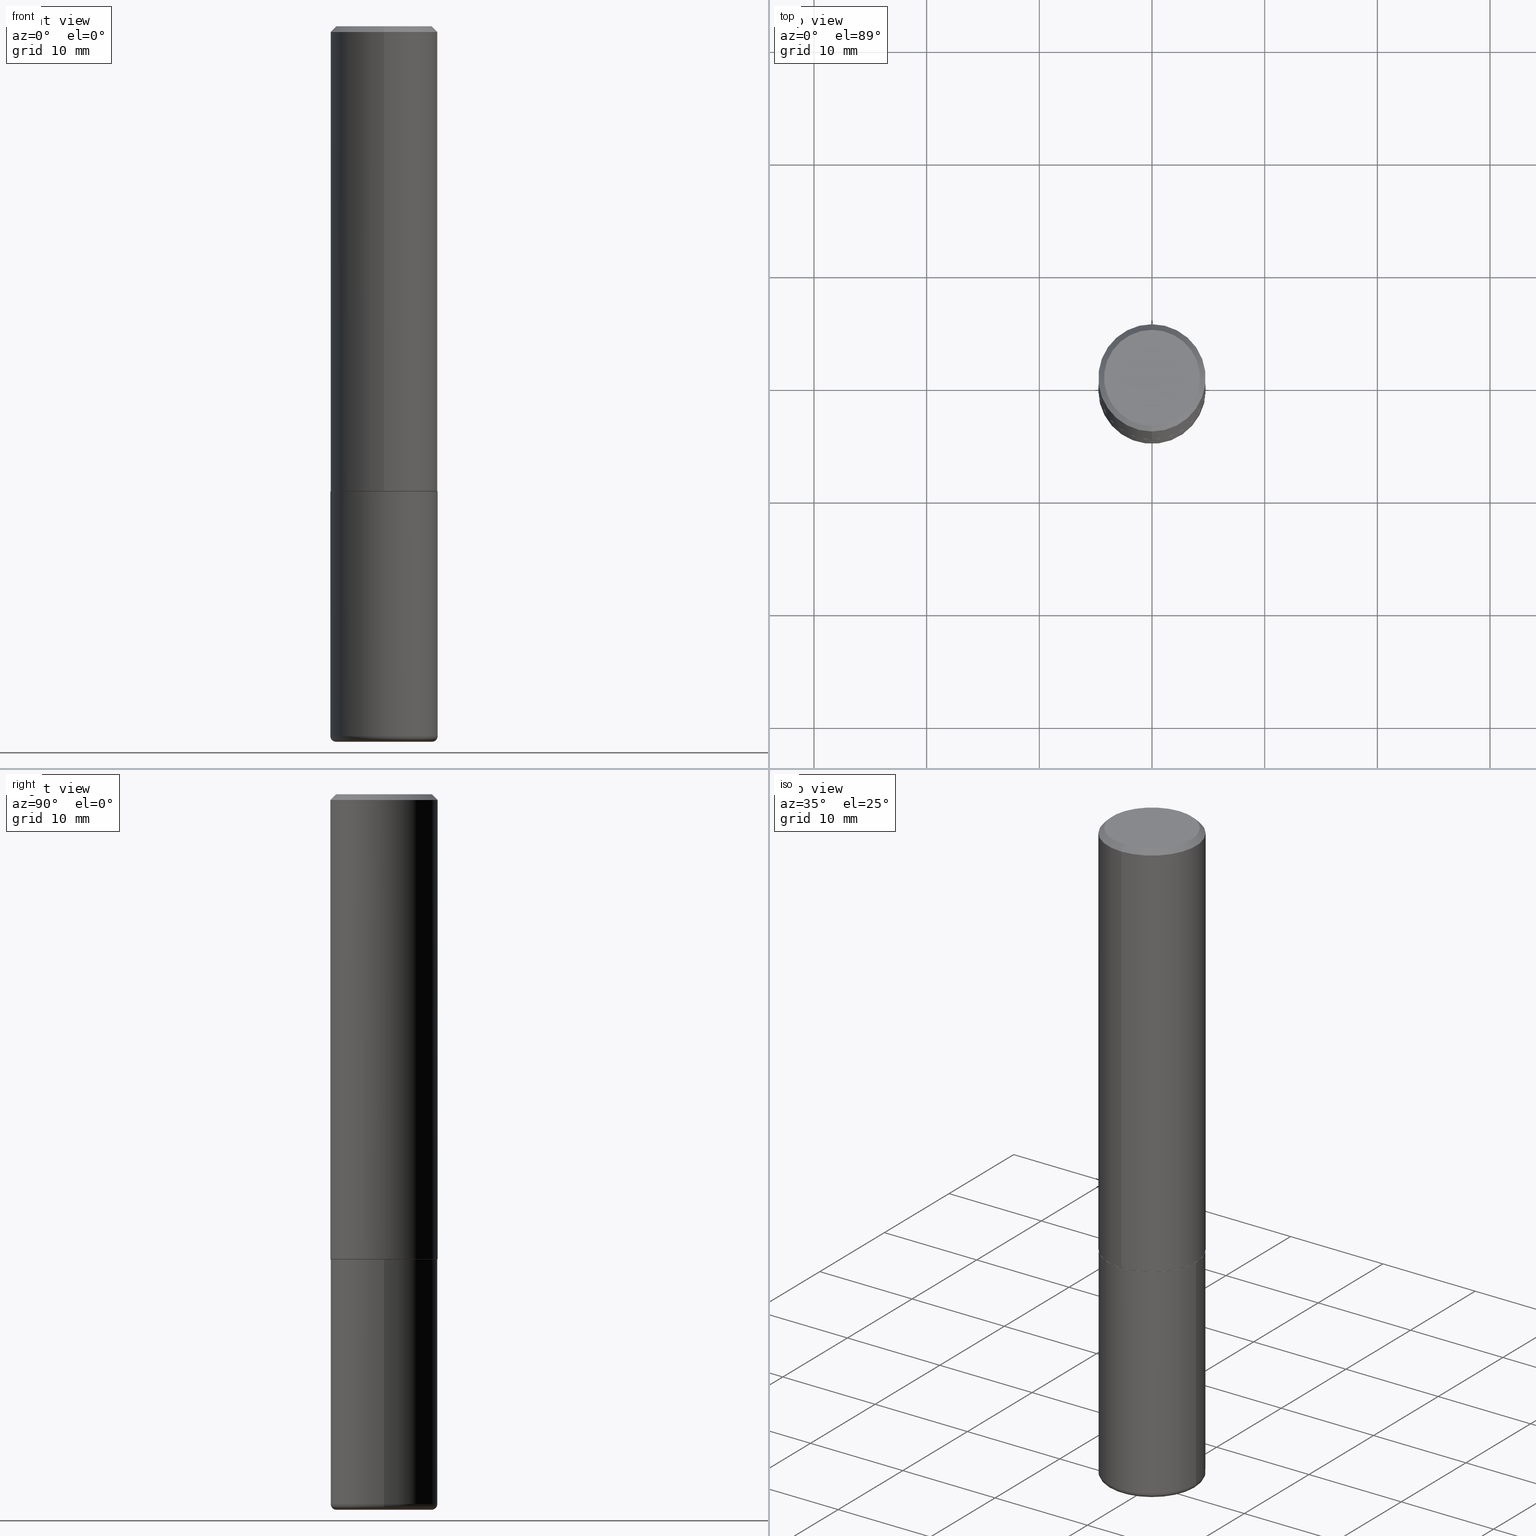
[diagram: canonical four-view strip — front | top / right | iso, engineering-drawing reading convention]
A machine part, canonical four-view strip (front | top / right | iso — engineering-drawing reading convention). The complete STEP part file that produces these views, byte-faithful:
ISO-10303-21;
HEADER;
FILE_DESCRIPTION (( 'STEP AP203' ),
    '1' );
FILE_NAME ('36864.STEP',
    '2024-03-01T18:25:11',
    ( '' ),
    ( '' ),
    'SwSTEP 2.0',
    'SolidWorks 2023',
    '' );
FILE_SCHEMA (( 'CONFIG_CONTROL_DESIGN' ));
ENDSEC;

DATA;
#1 = PERSON_AND_ORGANIZATION ( #294, #398 ) ;
#2 = AXIS2_PLACEMENT_3D ( 'NONE', #152, #216, #248 ) ;
#3 = CARTESIAN_POINT ( 'NONE',  ( 6.064762639339139522E-29, -8.658873720331001644E-15, -2.480000000000000426 ) ) ;
#4 = CIRCLE ( 'NONE', #397, 0.1674999999999999822 ) ;
#5 = AXIS2_PLACEMENT_3D ( 'NONE', #219, #247, #119 ) ;
#6 = CARTESIAN_POINT ( 'NONE',  ( 4.862456832815075803E-31, -7.023748775034694809E-17, -0.02000000000000008021 ) ) ;
#7 = PRODUCT_RELATED_PRODUCT_CATEGORY ( 'detail', '', ( #140 ) ) ;
#8 = ORIENTED_EDGE ( 'NONE', *, *, #199, .T. ) ;
#9 = PERSON_AND_ORGANIZATION ( #294, #398 ) ;
#10 = ORIENTED_EDGE ( 'NONE', *, *, #115, .T. ) ;
#11 = CONICAL_SURFACE ( 'NONE', #5, 0.1864999999999999991, 0.7853981633974824739 ) ;
#12 = COORDINATED_UNIVERSAL_TIME_OFFSET ( 5, 0, .BEHIND. ) ;
#13 = CC_DESIGN_DATE_AND_TIME_ASSIGNMENT ( #124, #198, ( #221 ) ) ;
#14 = ORIENTED_EDGE ( 'NONE', *, *, #174, .T. ) ;
#15 = CLOSED_SHELL ( 'NONE', ( #263, #268, #169, #69, #395, #57 ) ) ;
#16 = AXIS2_PLACEMENT_3D ( 'NONE', #96, #226, #32 ) ;
#17 = MANIFOLD_SOLID_BREP ( 'Body-Move/Copy2[1]', #15 ) ;
#18 = DIRECTION ( 'NONE',  ( 1.000000000000000000, -6.982962677686273021E-15, 0.000000000000000000 ) ) ;
#19 = DIRECTION ( 'NONE',  ( -2.445468806185136597E-29, 3.491481338843145583E-15, 1.000000000000000000 ) ) ;
#20 = FACE_OUTER_BOUND ( 'NONE', #67, .T. ) ;
#21 = DIRECTION ( 'NONE',  ( -2.445468806185136597E-29, 3.491481338843145583E-15, 1.000000000000000000 ) ) ;
#22 = ORIENTED_EDGE ( 'NONE', *, *, #318, .T. ) ;
#23 = AXIS2_PLACEMENT_3D ( 'NONE', #229, #131, #416 ) ;
#24 = CC_DESIGN_SECURITY_CLASSIFICATION ( #108, ( #179 ) ) ;
#25 = CARTESIAN_POINT ( 'NONE',  ( -1.302322539388449156E-15, -0.1865000000000057168, -1.624999999999999778 ) ) ;
#26 = PERSON_AND_ORGANIZATION ( #294, #398 ) ;
#27 = DIRECTION ( 'NONE',  ( -2.445468806185136877E-29, 3.491481338843145188E-15, 1.000000000000000000 ) ) ;
#28 = EDGE_CURVE ( 'NONE', #301, #278, #265, .T. ) ;
#29 = PERSON_AND_ORGANIZATION_ROLE ( 'classification_officer' ) ;
#30 = LINE ( 'NONE', #186, #113 ) ;
#31 = EDGE_CURVE ( 'NONE', #260, #278, #238, .T. ) ;
#32 = DIRECTION ( 'NONE',  ( 1.000000000000000000, -6.982962677686269077E-15, 4.883557194083112901E-29 ) ) ;
#33 = CIRCLE ( 'NONE', #195, 0.1874999999999999167 ) ;
#34 = CC_DESIGN_PERSON_AND_ORGANIZATION_ASSIGNMENT ( #409, #29, ( #108 ) ) ;
#35 = DIRECTION ( 'NONE',  ( 2.431228416407527584E-29, -3.511874387517332860E-15, -1.000000000000000000 ) ) ;
#36 = DIRECTION ( 'NONE',  ( -6.982962677686266711E-15, -1.000000000000000000, 3.491481338843145583E-15 ) ) ;
#37 = AXIS2_PLACEMENT_3D ( 'NONE', #148, #405, #242 ) ;
#38 = EDGE_CURVE ( 'NONE', #272, #187, #4, .T. ) ;
#39 = UNCERTAINTY_MEASURE_WITH_UNIT (LENGTH_MEASURE( 1.000000000000000082E-05 ), #126, 'distance_accuracy_value', 'NONE');
#40 = CYLINDRICAL_SURFACE ( 'NONE', #2, 0.1875000000000000555 ) ;
#41 = DIRECTION ( 'NONE',  ( 1.000000000000000000, -6.982962677686266711E-15, 4.876176775795935793E-29 ) ) ;
#42 = CARTESIAN_POINT ( 'NONE',  ( 3.948314948245825329E-29, -5.703284005328150284E-15, -1.624000000000000110 ) ) ;
#43 = CIRCLE ( 'NONE', #292, 0.1674999999999997879 ) ;
#44 = ORIENTED_EDGE ( 'NONE', *, *, #115, .F. ) ;
#45 = DIRECTION ( 'NONE',  ( -2.431228416407527584E-29, 3.511874387517332860E-15, 1.000000000000000000 ) ) ;
#46 = CARTESIAN_POINT ( 'NONE',  ( -1.286343374582161379E-15, -0.1875000000000000555, -0.01999999999999942449 ) ) ;
#47 = ORIENTED_EDGE ( 'NONE', *, *, #71, .F. ) ;
#48 = DIRECTION ( 'NONE',  ( -1.000000000000000000, 6.982962677686265922E-15, -4.876176775795935793E-29 ) ) ;
#49 = ORIENTED_EDGE ( 'NONE', *, *, #374, .F. ) ;
#50 = CIRCLE ( 'NONE', #275, 0.1874999999999999722 ) ;
#51 = ORIENTED_EDGE ( 'NONE', *, *, #127, .T. ) ;
#52 = DIRECTION ( 'NONE',  ( -1.000000000000000000, 6.982962677686265922E-15, -4.876176775795935793E-29 ) ) ;
#53 = EDGE_LOOP ( 'NONE', ( #379, #254 ) ) ;
#54 = CARTESIAN_POINT ( 'NONE',  ( -1.286343374582161379E-15, -0.1875000000000000555, -0.01999999999999942449 ) ) ;
#55 = APPROVAL_STATUS ( 'not_yet_approved' ) ;
#56 = DIRECTION ( 'NONE',  ( 1.000000000000000000, -6.982962677686269077E-15, 0.000000000000000000 ) ) ;
#57 = ADVANCED_FACE ( 'NONE', ( #77 ), #288, .T. ) ;
#58 = AXIS2_PLACEMENT_3D ( 'NONE', #204, #36, #270 ) ;
#59 = DIRECTION ( 'NONE',  ( 1.000000000000000000, -6.982962677686265922E-15, 0.000000000000000000 ) ) ;
#60 = DIRECTION ( 'NONE',  ( -2.431228416407527584E-29, 3.511874387517332860E-15, 1.000000000000000000 ) ) ;
#61 = CARTESIAN_POINT ( 'NONE',  ( 1.325162202192626283E-15, 0.1864999999999943092, -1.625000000000000888 ) ) ;
#62 = AXIS2_PLACEMENT_3D ( 'NONE', #252, #384, #90 ) ;
#63 = CARTESIAN_POINT ( 'NONE',  ( 0.1874999999999999722, -6.982962677686288010E-15, -1.625000000000000222 ) ) ;
#64 = CARTESIAN_POINT ( 'NONE',  ( 4.862456832815075803E-31, -7.023748775034694809E-17, -0.02000000000000008021 ) ) ;
#65 = ADVANCED_FACE ( 'NONE', ( #109 ), #40, .T. ) ;
#66 = CARTESIAN_POINT ( 'NONE',  ( 0.000000000000000000, 0.000000000000000000, 0.000000000000000000 ) ) ;
#67 = EDGE_LOOP ( 'NONE', ( #214, #10 ) ) ;
#68 = ADVANCED_BREP_SHAPE_REPRESENTATION ( '36864', ( #17, #293, #364 ), #350 ) ;
#69 = ADVANCED_FACE ( 'NONE', ( #146 ), #189, .T. ) ;
#70 = AXIS2_PLACEMENT_3D ( 'NONE', #343, #161, #291 ) ;
#71 = EDGE_CURVE ( 'NONE', #250, #260, #298, .T. ) ;
#72 = ORIENTED_EDGE ( 'NONE', *, *, #95, .T. ) ;
#73 = DIRECTION ( 'NONE',  ( 0.000000000000000000, 0.000000000000000000, 1.000000000000000000 ) ) ;
#74 = DIRECTION ( 'NONE',  ( -2.445468806185136597E-29, 3.491481338843145583E-15, 1.000000000000000000 ) ) ;
#75 = EDGE_LOOP ( 'NONE', ( #325, #206, #316, #145 ) ) ;
#76 = DIRECTION ( 'NONE',  ( 1.000000000000000000, -6.982962677686266711E-15, 4.876176775795935793E-29 ) ) ;
#77 = FACE_OUTER_BOUND ( 'NONE', #137, .T. ) ;
#78 = AXIS2_PLACEMENT_3D ( 'NONE', #258, #346, #314 ) ;
#79 = PLANE ( 'NONE',  #78 ) ;
#80 = APPROVAL_PERSON_ORGANIZATION ( #1, #332, #249 ) ;
#81 = ORIENTED_EDGE ( 'NONE', *, *, #277, .T. ) ;
#82 = DIRECTION ( 'NONE',  ( -4.937700262164715281E-15, -0.7071067811865691111, 0.7071067811865257013 ) ) ;
#83 = ORIENTED_EDGE ( 'NONE', *, *, #101, .F. ) ;
#84 = DIRECTION ( 'NONE',  ( 2.438088387897960049E-29, -3.491481338843145188E-15, -1.000000000000000000 ) ) ;
#85 = EDGE_CURVE ( 'NONE', #369, #338, #33, .T. ) ;
#86 = CALENDAR_DATE ( 2024, 1, 3 ) ;
#87 = CARTESIAN_POINT ( 'NONE',  ( 0.1874999999999999445, -1.309305502066174614E-15, 9.142831454617376809E-30 ) ) ;
#88 = VERTEX_POINT ( 'NONE', #25 ) ;
#89 = DIRECTION ( 'NONE',  ( -2.431228416407527584E-29, 3.511874387517332860E-15, 1.000000000000000000 ) ) ;
#90 = DIRECTION ( 'NONE',  ( -6.982962677686266711E-15, -1.000000000000000000, 2.913971193241878794E-15 ) ) ;
#91 = AXIS2_PLACEMENT_3D ( 'NONE', #185, #45, #380 ) ;
#92 = VECTOR ( 'NONE', #353, 39.37007874015748143 ) ;
#93 = CC_DESIGN_APPROVAL ( #345, ( #179 ) ) ;
#94 = CARTESIAN_POINT ( 'NONE',  ( 3.973886810050848091E-29, -5.673657175620113002E-15, -1.625000000000000222 ) ) ;
#95 = EDGE_CURVE ( 'NONE', #241, #88, #329, .T. ) ;
#96 = CARTESIAN_POINT ( 'NONE',  ( 6.064762639339139522E-29, -8.658873720331001644E-15, -2.480000000000000426 ) ) ;
#97 = CIRCLE ( 'NONE', #136, 0.01999999999999985470 ) ;
#98 = FACE_OUTER_BOUND ( 'NONE', #333, .T. ) ;
#99 = PLANE ( 'NONE',  #23 ) ;
#100 = LOCAL_TIME ( 13, 25, 11.00000000000000000, #227 ) ;
#101 = EDGE_CURVE ( 'NONE', #260, #250, #141, .T. ) ;
#102 = APPLICATION_PROTOCOL_DEFINITION ( 'international standard', 'config_control_design', 1994, #300 ) ;
#103 = ORIENTED_EDGE ( 'NONE', *, *, #318, .F. ) ;
#104 = EDGE_CURVE ( 'NONE', #88, #241, #309, .T. ) ;
#105 = ORIENTED_EDGE ( 'NONE', *, *, #415, .T. ) ;
#106 = CARTESIAN_POINT ( 'NONE',  ( 0.000000000000000000, 0.000000000000000000, 0.000000000000000000 ) ) ;
#107 = EDGE_CURVE ( 'NONE', #317, #372, #363, .T. ) ;
#108 = SECURITY_CLASSIFICATION ( '', '', #120 ) ;
#109 = FACE_OUTER_BOUND ( 'NONE', #75, .T. ) ;
#110 = ORIENTED_EDGE ( 'NONE', *, *, #391, .F. ) ;
#111 = ORIENTED_EDGE ( 'NONE', *, *, #417, .F. ) ;
#112 = CARTESIAN_POINT ( 'NONE',  ( 6.113672015462842613E-29, -8.728703347107864943E-15, -2.500000000000000000 ) ) ;
#113 = VECTOR ( 'NONE', #82, 39.37007874015748854 ) ;
#114 = CARTESIAN_POINT ( 'NONE',  ( 0.1674999999999999822, -9.898349595620314932E-15, -2.500000000000000000 ) ) ;
#115 = EDGE_CURVE ( 'NONE', #273, #143, #43, .T. ) ;
#116 = CARTESIAN_POINT ( 'NONE',  ( 6.064762639339139522E-29, -8.658873720331001644E-15, -2.480000000000000426 ) ) ;
#117 = DIRECTION ( 'NONE',  ( 7.105427357601001859E-15, 1.000000000000000000, -3.491481338843145583E-15 ) ) ;
#118 = CARTESIAN_POINT ( 'NONE',  ( 1.332267629550188046E-15, 0.1875000000000000555, -6.584764476595000345E-16 ) ) ;
#119 = DIRECTION ( 'NONE',  ( -6.982962677686265922E-15, -1.000000000000000000, 2.929595703661408456E-15 ) ) ;
#120 = SECURITY_CLASSIFICATION_LEVEL ( 'unclassified' ) ;
#121 = AXIS2_PLACEMENT_3D ( 'NONE', #337, #144, #342 ) ;
#122 = VECTOR ( 'NONE', #200, 39.37007874015748854 ) ;
#123 = FACE_OUTER_BOUND ( 'NONE', #306, .T. ) ;
#124 = DATE_AND_TIME ( #193, #393 ) ;
#125 = TOROIDAL_SURFACE ( 'NONE', #16, 0.1674999999999999822, 0.01999999999999985470 ) ;
#126 =( CONVERSION_BASED_UNIT ( 'INCH', #170 ) LENGTH_UNIT ( ) NAMED_UNIT ( #151 ) );
#127 = EDGE_CURVE ( 'NONE', #88, #250, #30, .T. ) ;
#128 = CARTESIAN_POINT ( 'NONE',  ( -2.988810848334046944E-45, 4.317294169713617776E-31, 1.229341853757378941E-16 ) ) ;
#129 = ORIENTED_EDGE ( 'NONE', *, *, #308, .F. ) ;
#130 = CARTESIAN_POINT ( 'NONE',  ( -0.1874999999999998890, -7.326606090780815374E-15, -2.480000000000000426 ) ) ;
#131 = DIRECTION ( 'NONE',  ( -2.431228416407527304E-29, 3.511874387517332860E-15, 1.000000000000000000 ) ) ;
#132 = DIRECTION ( 'NONE',  ( -2.445468806185136597E-29, 3.491481338843145583E-15, 1.000000000000000000 ) ) ;
#133 = EDGE_CURVE ( 'NONE', #143, #273, #341, .T. ) ;
#134 = PERSON_AND_ORGANIZATION_ROLE ( 'design_owner' ) ;
#135 = AXIS2_PLACEMENT_3D ( 'NONE', #112, #375, #48 ) ;
#136 = AXIS2_PLACEMENT_3D ( 'NONE', #223, #117, #383 ) ;
#137 = EDGE_LOOP ( 'NONE', ( #103, #180 ) ) ;
#138 = ORIENTED_EDGE ( 'NONE', *, *, #107, .F. ) ;
#139 = ORIENTED_EDGE ( 'NONE', *, *, #374, .T. ) ;
#140 = PRODUCT ( '36864', '36864', '', ( #245 ) ) ;
#141 = CIRCLE ( 'NONE', #62, 0.1875000000000001388 ) ;
#142 = CIRCLE ( 'NONE', #392, 0.1674999999999999822 ) ;
#143 = VERTEX_POINT ( 'NONE', #154 ) ;
#144 = DIRECTION ( 'NONE',  ( -2.431228416407527584E-29, 3.511874387517332860E-15, 1.000000000000000000 ) ) ;
#145 = ORIENTED_EDGE ( 'NONE', *, *, #336, .F. ) ;
#146 = FACE_OUTER_BOUND ( 'NONE', #212, .T. ) ;
#147 = DESIGN_CONTEXT ( 'detailed design', #387, 'design' ) ;
#148 = CARTESIAN_POINT ( 'NONE',  ( 3.950746176662233130E-29, -5.706795879715667229E-15, -1.625000000000000222 ) ) ;
#149 = DIRECTION ( 'NONE',  ( 1.000000000000000000, -6.982962677686269077E-15, 0.000000000000000000 ) ) ;
#150 = ORIENTED_EDGE ( 'NONE', *, *, #104, .T. ) ;
#151 = DIMENSIONAL_EXPONENTS ( 1.000000000000000000, 0.000000000000000000, 0.000000000000000000, 0.000000000000000000, 0.000000000000000000, 0.000000000000000000, 0.000000000000000000 ) ;
#152 = CARTESIAN_POINT ( 'NONE',  ( 0.000000000000000000, 0.000000000000000000, 0.000000000000000000 ) ) ;
#153 = CONICAL_SURFACE ( 'NONE', #37, 0.1864999999999999991, 0.7853981633974824739 ) ;
#154 = CARTESIAN_POINT ( 'NONE',  ( 1.239475875289311710E-15, 0.1674999999999997879, -4.653047745334146253E-16 ) ) ;
#155 = ORIENTED_EDGE ( 'NONE', *, *, #225, .T. ) ;
#156 = ADVANCED_FACE ( 'NONE', ( #412 ), #357, .T. ) ;
#157 = DIRECTION ( 'NONE',  ( -2.431228416407527584E-29, 3.511874387517332860E-15, 1.000000000000000000 ) ) ;
#158 = CALENDAR_DATE ( 2024, 1, 3 ) ;
#159 = DIRECTION ( 'NONE',  ( 2.431228416407527584E-29, -3.511874387517332860E-15, -1.000000000000000000 ) ) ;
#160 = DATE_TIME_ROLE ( 'classification_date' ) ;
#161 = DIRECTION ( 'NONE',  ( -2.431228416407527584E-29, 3.511874387517332860E-15, 1.000000000000000000 ) ) ;
#162 = COORDINATED_UNIVERSAL_TIME_OFFSET ( 5, 0, .BEHIND. ) ;
#163 = VECTOR ( 'NONE', #406, 39.37007874015748143 ) ;
#164 = AXIS2_PLACEMENT_3D ( 'NONE', #182, #132, #176 ) ;
#165 = APPROVAL_STATUS ( 'not_yet_approved' ) ;
#166 = CYLINDRICAL_SURFACE ( 'NONE', #244, 0.1874999999999999445 ) ;
#167 = CARTESIAN_POINT ( 'NONE',  ( 0.1874999999999998890, -9.968179222397176653E-15, -2.480000000000000426 ) ) ;
#168 = PERSON_AND_ORGANIZATION ( #294, #398 ) ;
#169 = ADVANCED_FACE ( 'NONE', ( #213 ), #251, .F. ) ;
#170 = LENGTH_MEASURE_WITH_UNIT ( LENGTH_MEASURE( 0.02539999999999999897 ), #197 );
#171 = DIRECTION ( 'NONE',  ( -2.445468806185136877E-29, 3.491481338843145188E-15, 1.000000000000000000 ) ) ;
#172 = ORIENTED_EDGE ( 'NONE', *, *, #308, .T. ) ;
#173 = DIRECTION ( 'NONE',  ( -2.431228416407527584E-29, 3.511874387517332860E-15, 1.000000000000000000 ) ) ;
#174 = EDGE_CURVE ( 'NONE', #272, #369, #97, .T. ) ;
#175 = CARTESIAN_POINT ( 'NONE',  ( -0.1874999999999999722, -5.833997818425370658E-15, -1.625000000000000222 ) ) ;
#176 = DIRECTION ( 'NONE',  ( 1.000000000000000000, -6.982962677686269077E-15, 4.883557194083112901E-29 ) ) ;
#177 = APPROVAL_STATUS ( 'not_yet_approved' ) ;
#178 = AXIS2_PLACEMENT_3D ( 'NONE', #259, #159, #407 ) ;
#179 = PRODUCT_DEFINITION_FORMATION_WITH_SPECIFIED_SOURCE ( 'ANY', '', #140, .NOT_KNOWN. ) ;
#180 = ORIENTED_EDGE ( 'NONE', *, *, #38, .F. ) ;
#181 = DIRECTION ( 'NONE',  ( -2.445468806185136597E-29, 3.491481338843145583E-15, 1.000000000000000000 ) ) ;
#182 = CARTESIAN_POINT ( 'NONE',  ( 6.064762639339139522E-29, -8.658873720331001644E-15, -2.480000000000000426 ) ) ;
#183 = LOCAL_TIME ( 13, 25, 11.00000000000000000, #12 ) ;
#184 = CARTESIAN_POINT ( 'NONE',  ( 3.950746176662233130E-29, -5.706795879715667229E-15, -1.625000000000000222 ) ) ;
#185 = CARTESIAN_POINT ( 'NONE',  ( 4.862456832815075803E-31, -7.023748775034694809E-17, -0.02000000000000008021 ) ) ;
#186 = CARTESIAN_POINT ( 'NONE',  ( -1.302322539388449156E-15, -0.1865000000000057168, -1.624999999999999778 ) ) ;
#187 = VERTEX_POINT ( 'NONE', #114 ) ;
#188 = CARTESIAN_POINT ( 'NONE',  ( 0.000000000000000000, 0.000000000000000000, 0.000000000000000000 ) ) ;
#189 = CYLINDRICAL_SURFACE ( 'NONE', #376, 0.1874999999999999445 ) ;
#190 = CLOSED_SHELL ( 'NONE', ( #192, #352, #401, #156, #65, #233, #302, #287 ) ) ;
#191 = EDGE_LOOP ( 'NONE', ( #22, #14, #403, #129 ) ) ;
#192 = ADVANCED_FACE ( 'NONE', ( #123 ), #11, .T. ) ;
#193 = CALENDAR_DATE ( 2024, 1, 3 ) ;
#194 = FACE_OUTER_BOUND ( 'NONE', #274, .T. ) ;
#195 = AXIS2_PLACEMENT_3D ( 'NONE', #116, #211, #320 ) ;
#196 = CIRCLE ( 'NONE', #58, 0.01999999999999985470 ) ;
#197 =( LENGTH_UNIT ( ) NAMED_UNIT ( * ) SI_UNIT ( $, .METRE. ) );
#198 = DATE_TIME_ROLE ( 'creation_date' ) ;
#199 = EDGE_CURVE ( 'NONE', #372, #317, #50, .T. ) ;
#200 = DIRECTION ( 'NONE',  ( 5.024295867788231995E-15, 0.7071067811865739960, 0.7071067811865208164 ) ) ;
#201 = AXIS2_PLACEMENT_3D ( 'NONE', #296, #60, #367 ) ;
#202 = CC_DESIGN_DATE_AND_TIME_ASSIGNMENT ( #358, #160, ( #108 ) ) ;
#203 = DIRECTION ( 'NONE',  ( 6.982962677686266711E-15, 1.000000000000000000, -3.505871591869138487E-15 ) ) ;
#204 = CARTESIAN_POINT ( 'NONE',  ( 0.1674999999999999822, -9.828519968843451634E-15, -2.480000000000000426 ) ) ;
#205 = DIRECTION ( 'NONE',  ( 1.000000000000000000, 0.000000000000000000, 0.000000000000000000 ) ) ;
#206 = ORIENTED_EDGE ( 'NONE', *, *, #101, .T. ) ;
#207 = CIRCLE ( 'NONE', #271, 0.1874999999999999722 ) ;
#208 = EDGE_LOOP ( 'NONE', ( #44, #155, #321, #232 ) ) ;
#209 = EDGE_CURVE ( 'NONE', #143, #278, #348, .T. ) ;
#210 = CC_DESIGN_APPROVAL ( #239, ( #221 ) ) ;
#211 = DIRECTION ( 'NONE',  ( -2.445468806185136597E-29, 3.491481338843145583E-15, 1.000000000000000000 ) ) ;
#212 = EDGE_LOOP ( 'NONE', ( #110, #324, #81, #240 ) ) ;
#213 = FACE_OUTER_BOUND ( 'NONE', #307, .T. ) ;
#214 = ORIENTED_EDGE ( 'NONE', *, *, #133, .T. ) ;
#215 = ORIENTED_EDGE ( 'NONE', *, *, #107, .T. ) ;
#216 = DIRECTION ( 'NONE',  ( -2.431228416407527584E-29, 3.511874387517332860E-15, 1.000000000000000000 ) ) ;
#217 = SHAPE_DEFINITION_REPRESENTATION ( #234, #68 ) ;
#218 = ORIENTED_EDGE ( 'NONE', *, *, #71, .T. ) ;
#219 = CARTESIAN_POINT ( 'NONE',  ( 3.950746176662233130E-29, -5.706795879715667229E-15, -1.625000000000000222 ) ) ;
#220 = COORDINATED_UNIVERSAL_TIME_OFFSET ( 5, 0, .BEHIND. ) ;
#221 = PRODUCT_DEFINITION ( 'UNKNOWN', '', #179, #147 ) ;
#222 = EDGE_LOOP ( 'NONE', ( #261, #286, #282, #243 ) ) ;
#223 = CARTESIAN_POINT ( 'NONE',  ( -0.1674999999999999822, -7.468714637932833959E-15, -2.480000000000000426 ) ) ;
#224 = DIRECTION ( 'NONE',  ( -2.445468806185136597E-29, 3.491481338843145583E-15, 1.000000000000000000 ) ) ;
#225 = EDGE_CURVE ( 'NONE', #273, #301, #386, .T. ) ;
#226 = DIRECTION ( 'NONE',  ( -2.445468806185136597E-29, 3.491481338843145583E-15, 1.000000000000000000 ) ) ;
#227 = COORDINATED_UNIVERSAL_TIME_OFFSET ( 5, 0, .BEHIND. ) ;
#228 = AXIS2_PLACEMENT_3D ( 'NONE', #285, #84, #52 ) ;
#229 = CARTESIAN_POINT ( 'NONE',  ( 3.950746176662233130E-29, -5.706795879715667229E-15, -1.625000000000000222 ) ) ;
#230 = VECTOR ( 'NONE', #173, 39.37007874015748143 ) ;
#231 = APPLICATION_PROTOCOL_DEFINITION ( 'international standard', 'config_control_design', 1994, #387 ) ;
#232 = ORIENTED_EDGE ( 'NONE', *, *, #209, .F. ) ;
#233 = ADVANCED_FACE ( 'NONE', ( #194 ), #153, .T. ) ;
#234 = PRODUCT_DEFINITION_SHAPE ( 'NONE', 'NONE',  #221 ) ;
#235 = AXIS2_PLACEMENT_3D ( 'NONE', #64, #35, #203 ) ;
#236 = CONICAL_SURFACE ( 'NONE', #235, 0.1874999999999999722, 0.7853981633974480570 ) ;
#237 = LOCAL_TIME ( 13, 25, 11.00000000000000000, #381 ) ;
#238 = LINE ( 'NONE', #118, #163 ) ;
#239 = APPROVAL ( #177, 'UNSPECIFIED' ) ;
#240 = ORIENTED_EDGE ( 'NONE', *, *, #199, .F. ) ;
#241 = VERTEX_POINT ( 'NONE', #377 ) ;
#242 = DIRECTION ( 'NONE',  ( -6.982962677686265922E-15, -1.000000000000000000, 2.929595703661408456E-15 ) ) ;
#243 = ORIENTED_EDGE ( 'NONE', *, *, #336, .T. ) ;
#244 = AXIS2_PLACEMENT_3D ( 'NONE', #66, #74, #41 ) ;
#245 = MECHANICAL_CONTEXT ( 'NONE', #300, 'mechanical' ) ;
#246 = EDGE_LOOP ( 'NONE', ( #105, #347, #138, #373 ) ) ;
#247 = DIRECTION ( 'NONE',  ( -2.431228416407527584E-29, 3.511874387517332860E-15, 1.000000000000000000 ) ) ;
#248 = DIRECTION ( 'NONE',  ( -6.982962677686265922E-15, -1.000000000000000000, 3.511874387517332466E-15 ) ) ;
#249 = APPROVAL_ROLE ( '' ) ;
#250 = VERTEX_POINT ( 'NONE', #315 ) ;
#251 = PLANE ( 'NONE',  #228 ) ;
#252 = CARTESIAN_POINT ( 'NONE',  ( 3.948314948245825329E-29, -5.703284005328150284E-15, -1.624000000000000110 ) ) ;
#253 = DIRECTION ( 'NONE',  ( 4.937700262164546464E-15, 0.7071067811865449082, -0.7071067811865501263 ) ) ;
#254 = ORIENTED_EDGE ( 'NONE', *, *, #95, .F. ) ;
#255 = AXIS2_PLACEMENT_3D ( 'NONE', #184, #157, #279 ) ;
#256 = CIRCLE ( 'NONE', #299, 0.1874999999999999167 ) ;
#257 = CC_DESIGN_APPROVAL ( #332, ( #108 ) ) ;
#258 = CARTESIAN_POINT ( 'NONE',  ( 1.169646248512448215E-15, 0.1674999999999997879, -5.267718672212835477E-16 ) ) ;
#259 = CARTESIAN_POINT ( 'NONE',  ( 4.862456832815075803E-31, -7.023748775034694809E-17, -0.02000000000000008021 ) ) ;
#260 = VERTEX_POINT ( 'NONE', #414 ) ;
#261 = ORIENTED_EDGE ( 'NONE', *, *, #225, .F. ) ;
#262 = APPROVAL_DATE_TIME ( #322, #345 ) ;
#263 = ADVANCED_FACE ( 'NONE', ( #366 ), #166, .T. ) ;
#264 = APPROVAL_DATE_TIME ( #413, #239 ) ;
#265 = CIRCLE ( 'NONE', #91, 0.1874999999999999722 ) ;
#266 = AXIS2_PLACEMENT_3D ( 'NONE', #276, #19, #149 ) ;
#267 = LINE ( 'NONE', #389, #319 ) ;
#268 = ADVANCED_FACE ( 'NONE', ( #402 ), #283, .T. ) ;
#269 = DIRECTION ( 'NONE',  ( -2.445468806185136597E-29, 3.491481338843145583E-15, 1.000000000000000000 ) ) ;
#270 = DIRECTION ( 'NONE',  ( 1.000000000000000000, -6.982962677686287221E-15, 0.000000000000000000 ) ) ;
#271 = AXIS2_PLACEMENT_3D ( 'NONE', #6, #356, #328 ) ;
#272 = VERTEX_POINT ( 'NONE', #303 ) ;
#273 = VERTEX_POINT ( 'NONE', #334 ) ;
#274 = EDGE_LOOP ( 'NONE', ( #49, #72, #51, #83 ) ) ;
#275 = AXIS2_PLACEMENT_3D ( 'NONE', #94, #224, #56 ) ;
#276 = CARTESIAN_POINT ( 'NONE',  ( 3.973886810050848091E-29, -5.673657175620113002E-15, -1.625000000000000222 ) ) ;
#277 = EDGE_CURVE ( 'NONE', #338, #317, #370, .T. ) ;
#278 = VERTEX_POINT ( 'NONE', #410 ) ;
#279 = DIRECTION ( 'NONE',  ( -6.982962677686265922E-15, -1.000000000000000000, 2.929595703661408456E-15 ) ) ;
#280 = ORIENTED_EDGE ( 'NONE', *, *, #127, .F. ) ;
#281 = DIRECTION ( 'NONE',  ( -6.982962677686266711E-15, -1.000000000000000000, 3.511874387517332466E-15 ) ) ;
#282 = ORIENTED_EDGE ( 'NONE', *, *, #209, .T. ) ;
#283 = TOROIDAL_SURFACE ( 'NONE', #164, 0.1674999999999999822, 0.01999999999999985470 ) ;
#284 = DIRECTION ( 'NONE',  ( -2.431228416407527584E-29, 3.511874387517332860E-15, 1.000000000000000000 ) ) ;
#285 = CARTESIAN_POINT ( 'NONE',  ( 3.973886810050848091E-29, -5.673657175620113002E-15, -1.625000000000000222 ) ) ;
#286 = ORIENTED_EDGE ( 'NONE', *, *, #133, .F. ) ;
#287 = ADVANCED_FACE ( 'NONE', ( #20 ), #79, .F. ) ;
#288 = PLANE ( 'NONE',  #135 ) ;
#289 = CARTESIAN_POINT ( 'NONE',  ( 1.309305502066175205E-15, 0.1874999999999999167, -0.02000000000000073941 ) ) ;
#290 = DATE_AND_TIME ( #86, #237 ) ;
#291 = DIRECTION ( 'NONE',  ( -6.982962677686266711E-15, -1.000000000000000000, 3.511874387517332466E-15 ) ) ;
#292 = AXIS2_PLACEMENT_3D ( 'NONE', #128, #89, #281 ) ;
#293 = MANIFOLD_SOLID_BREP ( 'Body-Move/Copy2[2]', #190 ) ;
#294 = PERSON ( 'UNSPECIFIED', 'UNSPECIFIED', 'UNSPECIFIED', ('UNSPECIFIED'), ('UNSPECIFIED'), ('UNSPECIFIED') ) ;
#295 = APPROVAL_ROLE ( '' ) ;
#296 = CARTESIAN_POINT ( 'NONE',  ( 0.000000000000000000, 0.000000000000000000, 0.000000000000000000 ) ) ;
#297 = PERSON_AND_ORGANIZATION_ROLE ( 'design_supplier' ) ;
#298 = CIRCLE ( 'NONE', #349, 0.1875000000000001388 ) ;
#299 = AXIS2_PLACEMENT_3D ( 'NONE', #3, #418, #59 ) ;
#300 = APPLICATION_CONTEXT ( 'configuration controlled 3d designs of mechanical parts and assemblies' ) ;
#301 = VERTEX_POINT ( 'NONE', #46 ) ;
#302 = ADVANCED_FACE ( 'NONE', ( #355 ), #99, .F. ) ;
#303 = CARTESIAN_POINT ( 'NONE',  ( -0.1674999999999999822, -7.432575177745257104E-15, -2.500000000000000000 ) ) ;
#304 = CC_DESIGN_PERSON_AND_ORGANIZATION_ASSIGNMENT ( #326, #323, ( #221 ) ) ;
#305 = APPROVAL_ROLE ( '' ) ;
#306 = EDGE_LOOP ( 'NONE', ( #150, #139, #47, #280 ) ) ;
#307 = EDGE_LOOP ( 'NONE', ( #215, #8 ) ) ;
#308 = EDGE_CURVE ( 'NONE', #187, #338, #196, .T. ) ;
#309 = CIRCLE ( 'NONE', #121, 0.1864999999999999991 ) ;
#310 = ORIENTED_EDGE ( 'NONE', *, *, #28, .F. ) ;
#311 = APPROVAL_PERSON_ORGANIZATION ( #368, #239, #305 ) ;
#312 = APPROVAL_PERSON_ORGANIZATION ( #168, #345, #295 ) ;
#313 = CARTESIAN_POINT ( 'NONE',  ( 6.113672015462842613E-29, -8.728703347107864943E-15, -2.500000000000000000 ) ) ;
#314 = DIRECTION ( 'NONE',  ( 6.982962677686265922E-15, 1.000000000000000000, -3.511874387517332860E-15 ) ) ;
#315 = CARTESIAN_POINT ( 'NONE',  ( -1.309305502066136354E-15, -0.1875000000000058564, -1.623999999999999666 ) ) ;
#316 = ORIENTED_EDGE ( 'NONE', *, *, #417, .T. ) ;
#317 = VERTEX_POINT ( 'NONE', #63 ) ;
#318 = EDGE_CURVE ( 'NONE', #187, #272, #142, .T. ) ;
#319 = VECTOR ( 'NONE', #171, 39.37007874015748143 ) ;
#320 = DIRECTION ( 'NONE',  ( 1.000000000000000000, -6.982962677686265922E-15, 0.000000000000000000 ) ) ;
#321 = ORIENTED_EDGE ( 'NONE', *, *, #28, .T. ) ;
#322 = DATE_AND_TIME ( #158, #365 ) ;
#323 = PERSON_AND_ORGANIZATION_ROLE ( 'creator' ) ;
#324 = ORIENTED_EDGE ( 'NONE', *, *, #85, .T. ) ;
#325 = ORIENTED_EDGE ( 'NONE', *, *, #31, .F. ) ;
#326 = PERSON_AND_ORGANIZATION ( #294, #398 ) ;
#327 = FACE_OUTER_BOUND ( 'NONE', #208, .T. ) ;
#328 = DIRECTION ( 'NONE',  ( -6.982962677686266711E-15, -1.000000000000000000, 3.505871591869138487E-15 ) ) ;
#329 = CIRCLE ( 'NONE', #255, 0.1864999999999999991 ) ;
#330 = LINE ( 'NONE', #361, #230 ) ;
#331 = LINE ( 'NONE', #61, #122 ) ;
#332 = APPROVAL ( #55, 'UNSPECIFIED' ) ;
#333 = EDGE_LOOP ( 'NONE', ( #218, #382, #310, #111 ) ) ;
#334 = CARTESIAN_POINT ( 'NONE',  ( -1.217738394604445653E-15, -0.1674999999999997879, 7.111731452848904136E-16 ) ) ;
#335 = VECTOR ( 'NONE', #27, 39.37007874015748143 ) ;
#336 = EDGE_CURVE ( 'NONE', #278, #301, #207, .T. ) ;
#337 = CARTESIAN_POINT ( 'NONE',  ( 3.950746176662233130E-29, -5.706795879715667229E-15, -1.625000000000000222 ) ) ;
#338 = VERTEX_POINT ( 'NONE', #167 ) ;
#339 =( NAMED_UNIT ( * ) SI_UNIT ( $, .STERADIAN. ) SOLID_ANGLE_UNIT ( ) );
#340 = ORIENTED_EDGE ( 'NONE', *, *, #174, .F. ) ;
#341 = CIRCLE ( 'NONE', #70, 0.1674999999999997879 ) ;
#342 = DIRECTION ( 'NONE',  ( -6.982962677686265922E-15, -1.000000000000000000, 2.929595703661408456E-15 ) ) ;
#343 = CARTESIAN_POINT ( 'NONE',  ( -2.988810848334046944E-45, 4.317294169713617776E-31, 1.229341853757378941E-16 ) ) ;
#344 = EDGE_LOOP ( 'NONE', ( #340, #399, #172, #371 ) ) ;
#345 = APPROVAL ( #165, 'UNSPECIFIED' ) ;
#346 = DIRECTION ( 'NONE',  ( 2.431228416407527304E-29, -3.511874387517332860E-15, -1.000000000000000000 ) ) ;
#347 = ORIENTED_EDGE ( 'NONE', *, *, #391, .T. ) ;
#348 = LINE ( 'NONE', #289, #378 ) ;
#349 = AXIS2_PLACEMENT_3D ( 'NONE', #42, #284, #408 ) ;
#350 =( GEOMETRIC_REPRESENTATION_CONTEXT ( 3 ) GLOBAL_UNCERTAINTY_ASSIGNED_CONTEXT ( ( #39 ) ) GLOBAL_UNIT_ASSIGNED_CONTEXT ( ( #126, #400, #339 ) ) REPRESENTATION_CONTEXT ( 'NONE', 'WORKASPACE' ) );
#351 = PERSON_AND_ORGANIZATION_ROLE ( 'creator' ) ;
#352 = ADVANCED_FACE ( 'NONE', ( #98 ), #396, .T. ) ;
#353 = DIRECTION ( 'NONE',  ( -4.851104656540962697E-15, -0.7071067811865497932, -0.7071067811865452413 ) ) ;
#354 = CALENDAR_DATE ( 2024, 1, 3 ) ;
#355 = FACE_OUTER_BOUND ( 'NONE', #53, .T. ) ;
#356 = DIRECTION ( 'NONE',  ( -2.431228416407527584E-29, 3.511874387517332860E-15, 1.000000000000000000 ) ) ;
#357 = CONICAL_SURFACE ( 'NONE', #178, 0.1874999999999999722, 0.7853981633974480570 ) ;
#358 = DATE_AND_TIME ( #390, #100 ) ;
#359 = CARTESIAN_POINT ( 'NONE',  ( 6.113672015462842613E-29, -8.728703347107864943E-15, -2.500000000000000000 ) ) ;
#360 = CC_DESIGN_PERSON_AND_ORGANIZATION_ASSIGNMENT ( #388, #351, ( #179 ) ) ;
#361 = CARTESIAN_POINT ( 'NONE',  ( -1.309305502066175205E-15, -0.1875000000000000555, 6.584764476595000345E-16 ) ) ;
#362 = FACE_OUTER_BOUND ( 'NONE', #344, .T. ) ;
#363 = CIRCLE ( 'NONE', #266, 0.1874999999999999722 ) ;
#364 = AXIS2_PLACEMENT_3D ( 'NONE', #106, #73, #205 ) ;
#365 = LOCAL_TIME ( 13, 25, 11.00000000000000000, #220 ) ;
#366 = FACE_OUTER_BOUND ( 'NONE', #246, .T. ) ;
#367 = DIRECTION ( 'NONE',  ( -6.982962677686265922E-15, -1.000000000000000000, 3.511874387517332466E-15 ) ) ;
#368 = PERSON_AND_ORGANIZATION ( #294, #398 ) ;
#369 = VERTEX_POINT ( 'NONE', #130 ) ;
#370 = LINE ( 'NONE', #87, #335 ) ;
#371 = ORIENTED_EDGE ( 'NONE', *, *, #85, .F. ) ;
#372 = VERTEX_POINT ( 'NONE', #175 ) ;
#373 = ORIENTED_EDGE ( 'NONE', *, *, #277, .F. ) ;
#374 = EDGE_CURVE ( 'NONE', #241, #260, #331, .T. ) ;
#375 = DIRECTION ( 'NONE',  ( 2.438088387897960049E-29, -3.491481338843145188E-15, -1.000000000000000000 ) ) ;
#376 = AXIS2_PLACEMENT_3D ( 'NONE', #188, #181, #76 ) ;
#377 = CARTESIAN_POINT ( 'NONE',  ( 1.328714915871427182E-15, 0.1864999999999943092, -1.625000000000000888 ) ) ;
#378 = VECTOR ( 'NONE', #253, 39.37007874015748143 ) ;
#379 = ORIENTED_EDGE ( 'NONE', *, *, #104, .F. ) ;
#380 = DIRECTION ( 'NONE',  ( -6.982962677686266711E-15, -1.000000000000000000, 3.505871591869138487E-15 ) ) ;
#381 = COORDINATED_UNIVERSAL_TIME_OFFSET ( 5, 0, .BEHIND. ) ;
#382 = ORIENTED_EDGE ( 'NONE', *, *, #31, .T. ) ;
#383 = DIRECTION ( 'NONE',  ( -1.000000000000000000, 7.105427357600977404E-15, 0.000000000000000000 ) ) ;
#384 = DIRECTION ( 'NONE',  ( -2.431228416407527584E-29, 3.511874387517332860E-15, 1.000000000000000000 ) ) ;
#385 = CC_DESIGN_PERSON_AND_ORGANIZATION_ASSIGNMENT ( #9, #134, ( #140 ) ) ;
#386 = LINE ( 'NONE', #54, #92 ) ;
#387 = APPLICATION_CONTEXT ( 'configuration controlled 3d designs of mechanical parts and assemblies' ) ;
#388 = PERSON_AND_ORGANIZATION ( #294, #398 ) ;
#389 = CARTESIAN_POINT ( 'NONE',  ( -0.1874999999999999445, 1.332267629550187454E-15, -9.223003294227945188E-30 ) ) ;
#390 = CALENDAR_DATE ( 2024, 1, 3 ) ;
#391 = EDGE_CURVE ( 'NONE', #369, #372, #267, .T. ) ;
#392 = AXIS2_PLACEMENT_3D ( 'NONE', #359, #269, #394 ) ;
#393 = LOCAL_TIME ( 13, 25, 11.00000000000000000, #162 ) ;
#394 = DIRECTION ( 'NONE',  ( 1.000000000000000000, -6.982962677686273021E-15, 0.000000000000000000 ) ) ;
#395 = ADVANCED_FACE ( 'NONE', ( #362 ), #125, .T. ) ;
#396 = CYLINDRICAL_SURFACE ( 'NONE', #201, 0.1875000000000000555 ) ;
#397 = AXIS2_PLACEMENT_3D ( 'NONE', #313, #21, #18 ) ;
#398 = ORGANIZATION ( 'UNSPECIFIED', 'UNSPECIFIED', '' ) ;
#399 = ORIENTED_EDGE ( 'NONE', *, *, #38, .T. ) ;
#400 =( NAMED_UNIT ( * ) PLANE_ANGLE_UNIT ( ) SI_UNIT ( $, .RADIAN. ) );
#401 = ADVANCED_FACE ( 'NONE', ( #327 ), #236, .T. ) ;
#402 = FACE_OUTER_BOUND ( 'NONE', #191, .T. ) ;
#403 = ORIENTED_EDGE ( 'NONE', *, *, #415, .F. ) ;
#404 = CC_DESIGN_PERSON_AND_ORGANIZATION_ASSIGNMENT ( #26, #297, ( #179 ) ) ;
#405 = DIRECTION ( 'NONE',  ( -2.431228416407527584E-29, 3.511874387517332860E-15, 1.000000000000000000 ) ) ;
#406 = DIRECTION ( 'NONE',  ( -2.431228416407527584E-29, 3.511874387517332860E-15, 1.000000000000000000 ) ) ;
#407 = DIRECTION ( 'NONE',  ( 6.982962677686266711E-15, 1.000000000000000000, -3.505871591869138487E-15 ) ) ;
#408 = DIRECTION ( 'NONE',  ( -6.982962677686266711E-15, -1.000000000000000000, 2.913971193241878794E-15 ) ) ;
#409 = PERSON_AND_ORGANIZATION ( #294, #398 ) ;
#410 = CARTESIAN_POINT ( 'NONE',  ( 1.309305502066175205E-15, 0.1874999999999999167, -0.02000000000000073941 ) ) ;
#411 = APPROVAL_DATE_TIME ( #290, #332 ) ;
#412 = FACE_OUTER_BOUND ( 'NONE', #222, .T. ) ;
#413 = DATE_AND_TIME ( #354, #183 ) ;
#414 = CARTESIAN_POINT ( 'NONE',  ( 1.332267629550208556E-15, 0.1874999999999944489, -1.624000000000000776 ) ) ;
#415 = EDGE_CURVE ( 'NONE', #338, #369, #256, .T. ) ;
#416 = DIRECTION ( 'NONE',  ( -6.982962677686265922E-15, -1.000000000000000000, 3.511874387517332860E-15 ) ) ;
#417 = EDGE_CURVE ( 'NONE', #250, #301, #330, .T. ) ;
#418 = DIRECTION ( 'NONE',  ( -2.445468806185136597E-29, 3.491481338843145583E-15, 1.000000000000000000 ) ) ;
ENDSEC;
END-ISO-10303-21;
